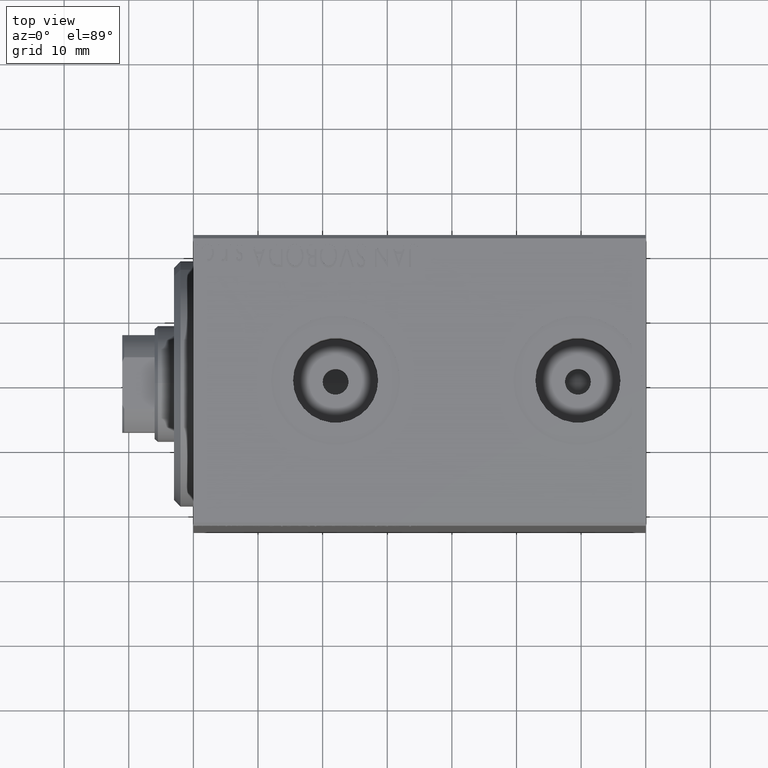
[diagram: clean part render]
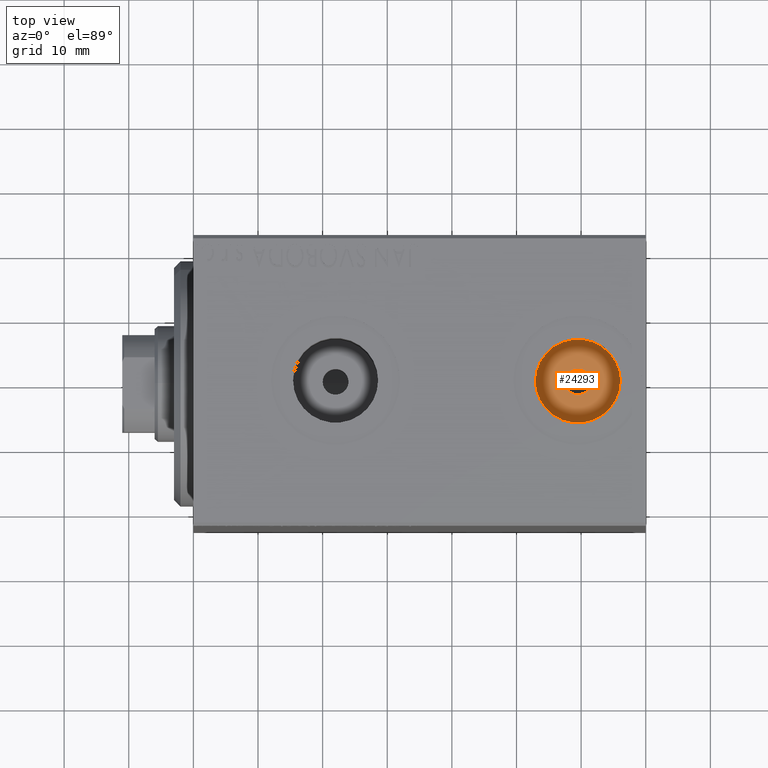
[diagram: same view with one face highlighted and labeled with its STEP entity id]
A machine part, top view. The second image highlights one B-rep face of the part: STEP entity #24293.
In plain terms, the highlighted planar face has unit normal (0, 0, 1).
Its self-contained STEP definition (entity closure, byte-faithful):
#842 = CIRCLE ( 'NONE', #23570, 6.579999999999995630 ) ;
#1709 = EDGE_CURVE ( 'NONE', #4722, #27134, #842, .T. ) ;
#3430 = FACE_OUTER_BOUND ( 'NONE', #4654, .T. ) ;
#3851 = EDGE_CURVE ( 'NONE', #27134, #4722, #8686, .T. ) ;
#4043 = CARTESIAN_POINT ( 'NONE',  ( 59.50000000000000711, -5.011423375044109822E-15, 19.23999999999999844 ) ) ;
#4654 = EDGE_LOOP ( 'NONE', ( #42794, #31899 ) ) ;
#4722 = VERTEX_POINT ( 'NONE', #16254 ) ;
#6440 = CARTESIAN_POINT ( 'NONE',  ( 59.50000000000000711, -5.011423375044109822E-15, 19.23999999999999844 ) ) ;
#8686 = CIRCLE ( 'NONE', #37117, 6.579999999999995630 ) ;
#8690 = AXIS2_PLACEMENT_3D ( 'NONE', #4043, #17598, #10910 ) ;
#9942 = CIRCLE ( 'NONE', #15615, 2.000000000000001776 ) ;
#10673 = DIRECTION ( 'NONE',  ( 1.000000000000000000, 0.000000000000000000, 0.000000000000000000 ) ) ;
#10910 = DIRECTION ( 'NONE',  ( 1.000000000000000000, 0.000000000000000000, 0.000000000000000000 ) ) ;
#13548 = DIRECTION ( 'NONE',  ( 0.000000000000000000, 0.000000000000000000, 1.000000000000000000 ) ) ;
#15615 = AXIS2_PLACEMENT_3D ( 'NONE', #37899, #30348, #20549 ) ;
#16254 = CARTESIAN_POINT ( 'NONE',  ( 52.92000000000000881, -4.205605781205152358E-15, 19.23999999999999844 ) ) ;
#16917 = CARTESIAN_POINT ( 'NONE',  ( 59.50000000000000711, -5.011423375044109822E-15, 19.23999999999999844 ) ) ;
#17139 = DIRECTION ( 'NONE',  ( 0.000000000000000000, 0.000000000000000000, 1.000000000000000000 ) ) ;
#17219 = EDGE_LOOP ( 'NONE', ( #26715, #25278 ) ) ;
#17598 = DIRECTION ( 'NONE',  ( 0.000000000000000000, 0.000000000000000000, 1.000000000000000000 ) ) ;
#19744 = EDGE_CURVE ( 'NONE', #34141, #34603, #9942, .T. ) ;
#20004 = DIRECTION ( 'NONE',  ( 1.000000000000000000, 0.000000000000000000, 0.000000000000000000 ) ) ;
#20549 = DIRECTION ( 'NONE',  ( 1.000000000000000000, 0.000000000000000000, 0.000000000000000000 ) ) ;
#23232 = CARTESIAN_POINT ( 'NONE',  ( 59.50000000000000711, -5.011423375044109822E-15, 19.23999999999999844 ) ) ;
#23570 = AXIS2_PLACEMENT_3D ( 'NONE', #6440, #13548, #20004 ) ;
#24293 = ADVANCED_FACE ( 'NONE', ( #39912, #3430 ), #29897, .T. ) ;
#25278 = ORIENTED_EDGE ( 'NONE', *, *, #31363, .F. ) ;
#26715 = ORIENTED_EDGE ( 'NONE', *, *, #19744, .F. ) ;
#27134 = VERTEX_POINT ( 'NONE', #28977 ) ;
#28557 = AXIS2_PLACEMENT_3D ( 'NONE', #23232, #30563, #36788 ) ;
#28977 = CARTESIAN_POINT ( 'NONE',  ( 66.07999999999999829, -5.011423375044109822E-15, 19.23999999999999844 ) ) ;
#28992 = CARTESIAN_POINT ( 'NONE',  ( 57.50000000000000000, -4.766494015214639526E-15, 19.23999999999999844 ) ) ;
#29897 = PLANE ( 'NONE',  #28557 ) ;
#30348 = DIRECTION ( 'NONE',  ( 0.000000000000000000, 0.000000000000000000, 1.000000000000000000 ) ) ;
#30422 = CARTESIAN_POINT ( 'NONE',  ( 61.50000000000000711, -5.011423375044109822E-15, 19.23999999999999844 ) ) ;
#30563 = DIRECTION ( 'NONE',  ( 0.000000000000000000, 0.000000000000000000, 1.000000000000000000 ) ) ;
#31363 = EDGE_CURVE ( 'NONE', #34603, #34141, #34299, .T. ) ;
#31899 = ORIENTED_EDGE ( 'NONE', *, *, #1709, .T. ) ;
#34141 = VERTEX_POINT ( 'NONE', #30422 ) ;
#34299 = CIRCLE ( 'NONE', #8690, 2.000000000000001776 ) ;
#34603 = VERTEX_POINT ( 'NONE', #28992 ) ;
#36788 = DIRECTION ( 'NONE',  ( 1.000000000000000000, 0.000000000000000000, -0.000000000000000000 ) ) ;
#37117 = AXIS2_PLACEMENT_3D ( 'NONE', #16917, #17139, #10673 ) ;
#37899 = CARTESIAN_POINT ( 'NONE',  ( 59.50000000000000711, -5.011423375044109822E-15, 19.23999999999999844 ) ) ;
#39912 = FACE_BOUND ( 'NONE', #17219, .T. ) ;
#42794 = ORIENTED_EDGE ( 'NONE', *, *, #3851, .T. ) ;